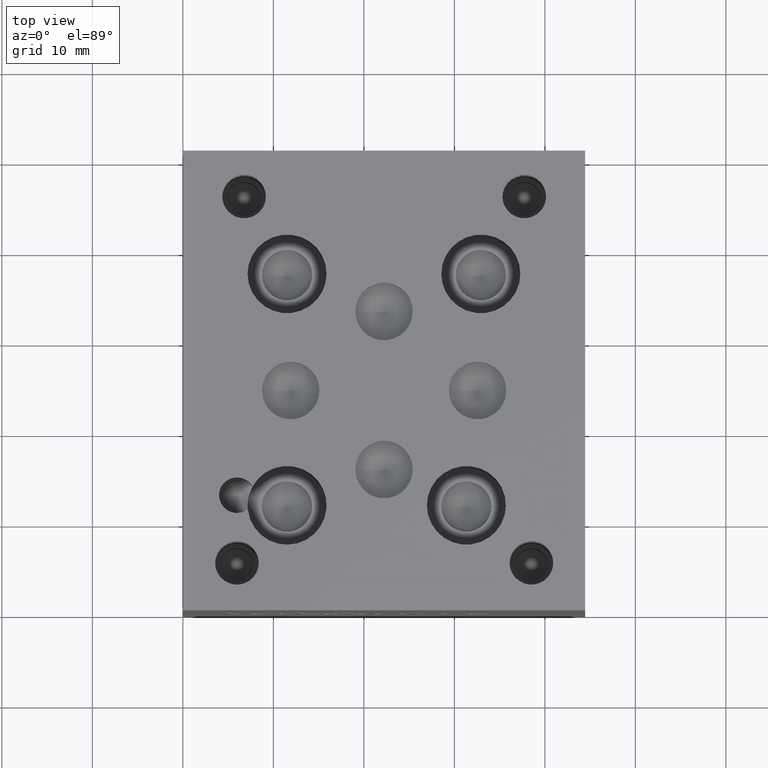
[diagram: clean part render]
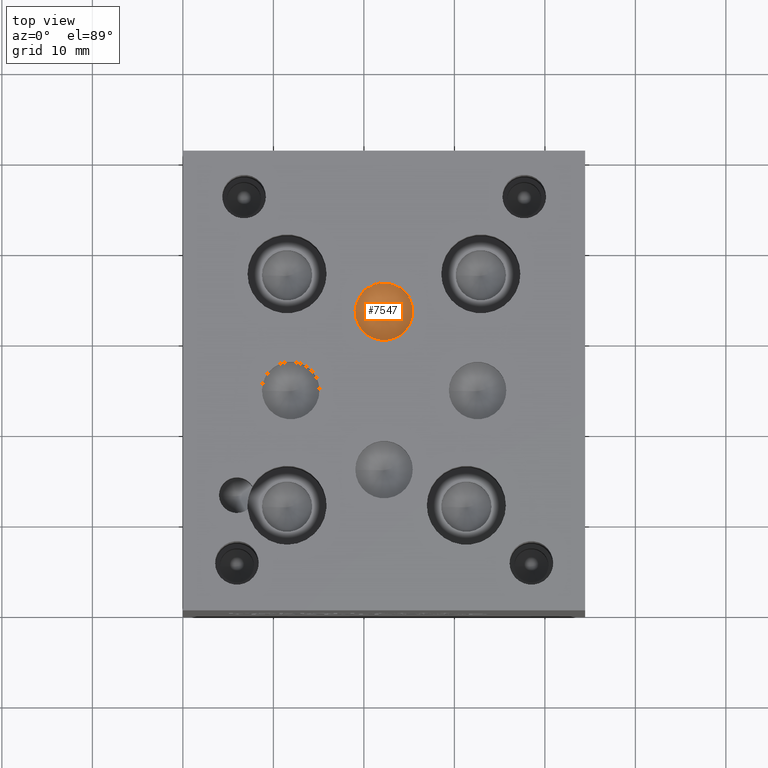
[diagram: same view with one face highlighted and labeled with its STEP entity id]
A machine part, top view. The second image highlights one B-rep face of the part: STEP entity #7547.
In plain terms, the highlighted conical surface has half-angle 60 deg.
Its self-contained STEP definition (entity closure, byte-faithful):
#26=CONICAL_SURFACE('',#7953,1.5875,1.0471975511966);
#115=CIRCLE('',#7954,3.175);
#116=CIRCLE('',#7955,3.175);
#798=FACE_OUTER_BOUND('',#1229,.T.);
#1229=EDGE_LOOP('',(#6471,#6472,#6473,#6474));
#2024=LINE('',#12562,#2802);
#2802=VECTOR('',#9494,1.5875);
#3499=VERTEX_POINT('',#12558);
#3500=VERTEX_POINT('',#12559);
#3501=VERTEX_POINT('',#12561);
#4513=EDGE_CURVE('',#3499,#3500,#115,.T.);
#4514=EDGE_CURVE('',#3500,#3501,#2024,.T.);
#4515=EDGE_CURVE('',#3500,#3499,#116,.T.);
#6471=ORIENTED_EDGE('',*,*,#4513,.T.);
#6472=ORIENTED_EDGE('',*,*,#4514,.T.);
#6473=ORIENTED_EDGE('',*,*,#4514,.F.);
#6474=ORIENTED_EDGE('',*,*,#4515,.T.);
#7547=ADVANCED_FACE('',(#798),#26,.F.);
#7953=AXIS2_PLACEMENT_3D('',#12557,#9490,#9491);
#7954=AXIS2_PLACEMENT_3D('',#12560,#9492,#9493);
#7955=AXIS2_PLACEMENT_3D('',#12563,#9495,#9496);
#9490=DIRECTION('center_axis',(0.,0.,1.));
#9491=DIRECTION('ref_axis',(1.,0.,0.));
#9492=DIRECTION('center_axis',(0.,0.,1.));
#9493=DIRECTION('ref_axis',(1.,0.,0.));
#9494=DIRECTION('',(0.866025403784439,1.06057523872491E-16,-0.5));
#9495=DIRECTION('center_axis',(0.,0.,1.));
#9496=DIRECTION('ref_axis',(1.,0.,0.));
#12557=CARTESIAN_POINT('Origin',(22.225,33.02,41.7003664476615));
#12558=CARTESIAN_POINT('',(25.4,33.02,42.61691));
#12559=CARTESIAN_POINT('',(19.05,33.02,42.61691));
#12560=CARTESIAN_POINT('Origin',(22.225,33.02,42.61691));
#12561=CARTESIAN_POINT('',(22.225,33.02,40.7838228953229));
#12562=CARTESIAN_POINT('',(20.6375,33.02,41.7003664476615));
#12563=CARTESIAN_POINT('Origin',(22.225,33.02,42.61691));